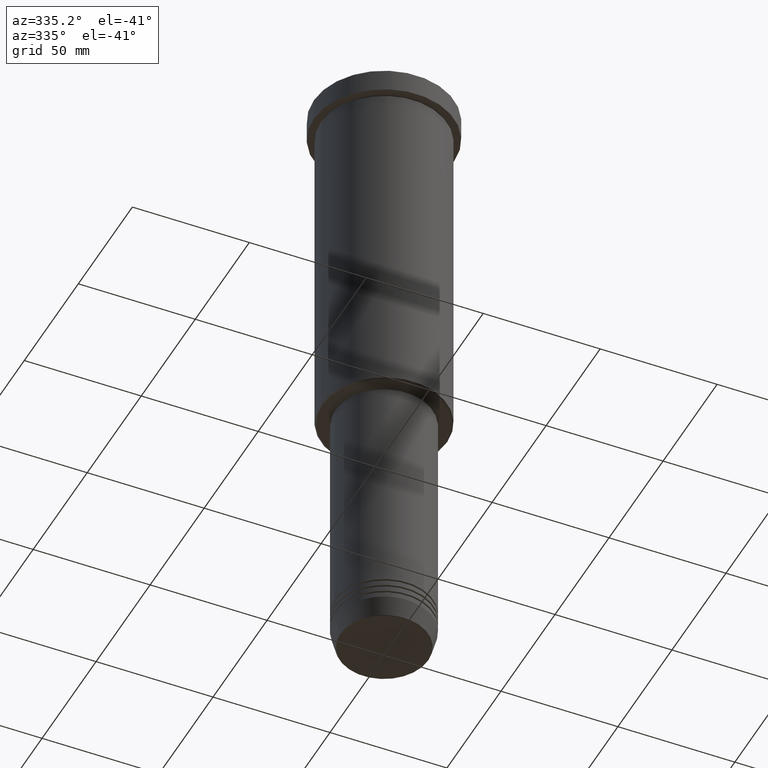
[diagram: clean part render]
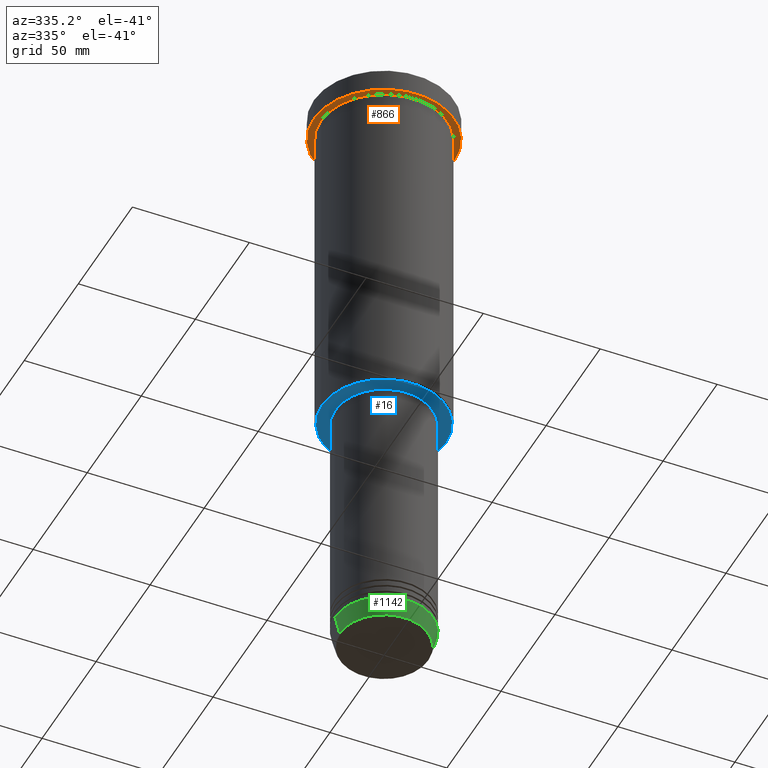
[diagram: same view with three faces highlighted in distinct colors, each labeled with its STEP entity id]
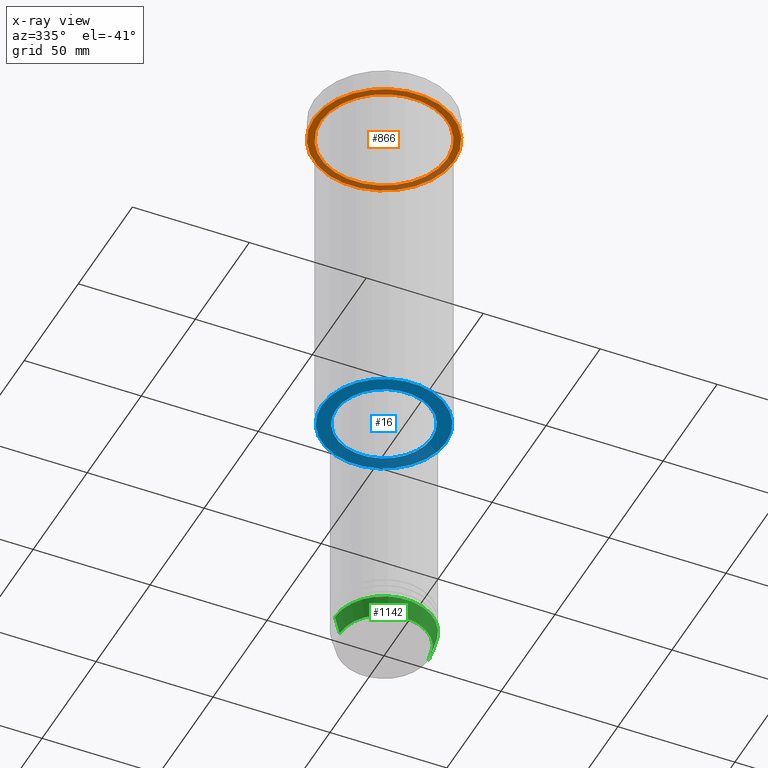
[diagram: x-ray of the same camera — body ghosted, the three highlighted faces saturated]
A machine part, auxiliary view with three faces highlighted in distinct colors.
The next image is the same camera in x-ray (body ghosted, the three faces saturated) — at least one of them is partly hidden behind the body in this view.
Their STEP definitions:

[orange] entity #866 — the highlighted planar face has unit normal (0, 0, -1).
#12 = CARTESIAN_POINT ( 'NONE',  ( 0.000000000000000000, 0.000000000000000000, -9.999999999999992895 ) ) ;
#14 = DIRECTION ( 'NONE',  ( -1.000000000000000000, 0.000000000000000000, -0.000000000000000000 ) ) ;
#37 = CARTESIAN_POINT ( 'NONE',  ( 0.000000000000000000, 30.00000000000000000, -9.999999999999992895 ) ) ;
#47 = CIRCLE ( 'NONE', #234, 27.00000000000000355 ) ;
#101 = DIRECTION ( 'NONE',  ( -1.000000000000000000, 0.000000000000000000, 0.000000000000000000 ) ) ;
#111 = ORIENTED_EDGE ( 'NONE', *, *, #476, .F. ) ;
#114 = ORIENTED_EDGE ( 'NONE', *, *, #998, .F. ) ;
#134 = DIRECTION ( 'NONE',  ( 1.000000000000000000, 0.000000000000000000, 0.000000000000000000 ) ) ;
#201 = AXIS2_PLACEMENT_3D ( 'NONE', #12, #286, #835 ) ;
#204 = VERTEX_POINT ( 'NONE', #1048 ) ;
#224 = CARTESIAN_POINT ( 'NONE',  ( 0.000000000000000000, 0.000000000000000000, -9.999999999999992895 ) ) ;
#234 = AXIS2_PLACEMENT_3D ( 'NONE', #656, #930, #101 ) ;
#252 = VERTEX_POINT ( 'NONE', #1177 ) ;
#286 = DIRECTION ( 'NONE',  ( -0.000000000000000000, -0.000000000000000000, 1.000000000000000000 ) ) ;
#378 = VERTEX_POINT ( 'NONE', #675 ) ;
#466 = CIRCLE ( 'NONE', #201, 30.00000000000000000 ) ;
#476 = EDGE_CURVE ( 'NONE', #378, #252, #859, .T. ) ;
#487 = AXIS2_PLACEMENT_3D ( 'NONE', #517, #777, #1126 ) ;
#517 = CARTESIAN_POINT ( 'NONE',  ( 0.000000000000000000, 0.000000000000000000, -9.999999999999992895 ) ) ;
#593 = VERTEX_POINT ( 'NONE', #1074 ) ;
#656 = CARTESIAN_POINT ( 'NONE',  ( 0.000000000000000000, 0.000000000000000000, -9.999999999999992895 ) ) ;
#675 = CARTESIAN_POINT ( 'NONE',  ( 30.00000000000000000, 0.000000000000000000, -9.999999999999992895 ) ) ;
#680 = ORIENTED_EDGE ( 'NONE', *, *, #741, .T. ) ;
#700 = AXIS2_PLACEMENT_3D ( 'NONE', #224, #1132, #134 ) ;
#702 = EDGE_LOOP ( 'NONE', ( #680, #944 ) ) ;
#741 = EDGE_CURVE ( 'NONE', #593, #204, #807, .T. ) ;
#770 = FACE_BOUND ( 'NONE', #702, .T. ) ;
#777 = DIRECTION ( 'NONE',  ( -0.000000000000000000, -0.000000000000000000, 1.000000000000000000 ) ) ;
#807 = CIRCLE ( 'NONE', #487, 27.00000000000000355 ) ;
#835 = DIRECTION ( 'NONE',  ( 1.000000000000000000, 0.000000000000000000, 0.000000000000000000 ) ) ;
#859 = CIRCLE ( 'NONE', #700, 30.00000000000000000 ) ;
#866 = ADVANCED_FACE ( 'NONE', ( #770, #868 ), #1123, .T. ) ;
#868 = FACE_OUTER_BOUND ( 'NONE', #938, .T. ) ;
#930 = DIRECTION ( 'NONE',  ( -0.000000000000000000, -0.000000000000000000, 1.000000000000000000 ) ) ;
#938 = EDGE_LOOP ( 'NONE', ( #111, #114 ) ) ;
#944 = ORIENTED_EDGE ( 'NONE', *, *, #991, .T. ) ;
#981 = AXIS2_PLACEMENT_3D ( 'NONE', #37, #1012, #14 ) ;
#991 = EDGE_CURVE ( 'NONE', #204, #593, #47, .T. ) ;
#998 = EDGE_CURVE ( 'NONE', #252, #378, #466, .T. ) ;
#1012 = DIRECTION ( 'NONE',  ( 0.000000000000000000, 0.000000000000000000, -1.000000000000000000 ) ) ;
#1048 = CARTESIAN_POINT ( 'NONE',  ( 27.00000000000000355, 3.306546357697854128E-15, -9.999999999999992895 ) ) ;
#1074 = CARTESIAN_POINT ( 'NONE',  ( -27.00000000000000355, 0.000000000000000000, -9.999999999999992895 ) ) ;
#1123 = PLANE ( 'NONE',  #981 ) ;
#1126 = DIRECTION ( 'NONE',  ( -1.000000000000000000, 0.000000000000000000, 0.000000000000000000 ) ) ;
#1132 = DIRECTION ( 'NONE',  ( -0.000000000000000000, -0.000000000000000000, 1.000000000000000000 ) ) ;
#1177 = CARTESIAN_POINT ( 'NONE',  ( -30.00000000000000000, 3.673940397442059178E-15, -9.999999999999992895 ) ) ;

[blue] entity #16 — the highlighted planar face has unit normal (0, 0, -1).
#16 = ADVANCED_FACE ( 'NONE', ( #199, #569 ), #669, .T. ) ;
#55 = ORIENTED_EDGE ( 'NONE', *, *, #1112, .T. ) ;
#92 = AXIS2_PLACEMENT_3D ( 'NONE', #714, #846, #483 ) ;
#141 = VERTEX_POINT ( 'NONE', #338 ) ;
#150 = CARTESIAN_POINT ( 'NONE',  ( -20.50000000000000000, 2.510525938252074481E-15, -156.0000000000000000 ) ) ;
#175 = DIRECTION ( 'NONE',  ( -0.000000000000000000, -0.000000000000000000, 1.000000000000000000 ) ) ;
#199 = FACE_OUTER_BOUND ( 'NONE', #811, .T. ) ;
#200 = CIRCLE ( 'NONE', #876, 26.50000000000002487 ) ;
#211 = CIRCLE ( 'NONE', #92, 26.50000000000002487 ) ;
#216 = EDGE_LOOP ( 'NONE', ( #800, #55 ) ) ;
#242 = CARTESIAN_POINT ( 'NONE',  ( -26.50000000000002487, 3.275930187719171524E-15, -156.0000000000000000 ) ) ;
#256 = CIRCLE ( 'NONE', #354, 20.50000000000000000 ) ;
#291 = DIRECTION ( 'NONE',  ( -1.000000000000000000, 0.000000000000000000, 0.000000000000000000 ) ) ;
#338 = CARTESIAN_POINT ( 'NONE',  ( 20.50000000000000000, 0.000000000000000000, -156.0000000000000000 ) ) ;
#342 = DIRECTION ( 'NONE',  ( -0.000000000000000000, -0.000000000000000000, 1.000000000000000000 ) ) ;
#354 = AXIS2_PLACEMENT_3D ( 'NONE', #1082, #175, #537 ) ;
#391 = VERTEX_POINT ( 'NONE', #848 ) ;
#394 = CIRCLE ( 'NONE', #950, 20.50000000000000000 ) ;
#464 = ORIENTED_EDGE ( 'NONE', *, *, #840, .T. ) ;
#483 = DIRECTION ( 'NONE',  ( -1.000000000000000000, 0.000000000000000000, 0.000000000000000000 ) ) ;
#537 = DIRECTION ( 'NONE',  ( 1.000000000000000000, 0.000000000000000000, 0.000000000000000000 ) ) ;
#563 = VERTEX_POINT ( 'NONE', #150 ) ;
#569 = FACE_BOUND ( 'NONE', #216, .T. ) ;
#575 = DIRECTION ( 'NONE',  ( 0.000000000000000000, 0.000000000000000000, -1.000000000000000000 ) ) ;
#659 = EDGE_CURVE ( 'NONE', #141, #563, #256, .T. ) ;
#669 = PLANE ( 'NONE',  #892 ) ;
#708 = ORIENTED_EDGE ( 'NONE', *, *, #952, .T. ) ;
#714 = CARTESIAN_POINT ( 'NONE',  ( 0.000000000000000000, 0.000000000000000000, -156.0000000000000000 ) ) ;
#760 = DIRECTION ( 'NONE',  ( 0.000000000000000000, 0.000000000000000000, -1.000000000000000000 ) ) ;
#800 = ORIENTED_EDGE ( 'NONE', *, *, #659, .T. ) ;
#804 = VERTEX_POINT ( 'NONE', #242 ) ;
#811 = EDGE_LOOP ( 'NONE', ( #464, #708 ) ) ;
#840 = EDGE_CURVE ( 'NONE', #391, #804, #200, .T. ) ;
#846 = DIRECTION ( 'NONE',  ( 0.000000000000000000, 0.000000000000000000, -1.000000000000000000 ) ) ;
#848 = CARTESIAN_POINT ( 'NONE',  ( 26.50000000000002487, 0.000000000000000000, -156.0000000000000000 ) ) ;
#876 = AXIS2_PLACEMENT_3D ( 'NONE', #1032, #760, #291 ) ;
#892 = AXIS2_PLACEMENT_3D ( 'NONE', #1024, #575, #1124 ) ;
#950 = AXIS2_PLACEMENT_3D ( 'NONE', #1156, #342, #1051 ) ;
#952 = EDGE_CURVE ( 'NONE', #804, #391, #211, .T. ) ;
#1024 = CARTESIAN_POINT ( 'NONE',  ( 0.000000000000000000, 27.00000000000000355, -156.0000000000000000 ) ) ;
#1032 = CARTESIAN_POINT ( 'NONE',  ( 0.000000000000000000, 0.000000000000000000, -156.0000000000000000 ) ) ;
#1051 = DIRECTION ( 'NONE',  ( 1.000000000000000000, 0.000000000000000000, 0.000000000000000000 ) ) ;
#1082 = CARTESIAN_POINT ( 'NONE',  ( 0.000000000000000000, 0.000000000000000000, -156.0000000000000000 ) ) ;
#1112 = EDGE_CURVE ( 'NONE', #563, #141, #394, .T. ) ;
#1124 = DIRECTION ( 'NONE',  ( -1.000000000000000000, 0.000000000000000000, -0.000000000000000000 ) ) ;
#1156 = CARTESIAN_POINT ( 'NONE',  ( 0.000000000000000000, 0.000000000000000000, -156.0000000000000000 ) ) ;

[green] entity #1142 — the highlighted conical surface has half-angle 15 deg.
#19 = DIRECTION ( 'NONE',  ( -0.000000000000000000, -0.000000000000000000, 1.000000000000000000 ) ) ;
#28 = AXIS2_PLACEMENT_3D ( 'NONE', #769, #19, #387 ) ;
#44 = CIRCLE ( 'NONE', #500, 18.95570587970606624 ) ;
#102 = ORIENTED_EDGE ( 'NONE', *, *, #607, .T. ) ;
#118 = VERTEX_POINT ( 'NONE', #787 ) ;
#217 = DIRECTION ( 'NONE',  ( -0.000000000000000000, -0.000000000000000000, 1.000000000000000000 ) ) ;
#223 = ORIENTED_EDGE ( 'NONE', *, *, #924, .T. ) ;
#254 = VECTOR ( 'NONE', #413, 1000.000000000000114 ) ;
#281 = DIRECTION ( 'NONE',  ( 0.2588190451025212391, 0.000000000000000000, 0.9659258262890680902 ) ) ;
#308 = FACE_OUTER_BOUND ( 'NONE', #516, .T. ) ;
#313 = VECTOR ( 'NONE', #281, 1000.000000000000114 ) ;
#326 = VERTEX_POINT ( 'NONE', #560 ) ;
#387 = DIRECTION ( 'NONE',  ( 1.000000000000000000, 0.000000000000000000, 0.000000000000000000 ) ) ;
#413 = DIRECTION ( 'NONE',  ( -0.2588190451025212391, 3.169619151431771721E-17, 0.9659258262890680902 ) ) ;
#426 = DIRECTION ( 'NONE',  ( 1.000000000000000000, 0.000000000000000000, 0.000000000000000000 ) ) ;
#470 = VERTEX_POINT ( 'NONE', #1155 ) ;
#500 = AXIS2_PLACEMENT_3D ( 'NONE', #731, #544, #823 ) ;
#516 = EDGE_LOOP ( 'NONE', ( #642, #102, #223, #772 ) ) ;
#519 = CARTESIAN_POINT ( 'NONE',  ( 0.000000000000000000, 0.000000000000000000, -263.0000000000000000 ) ) ;
#531 = EDGE_CURVE ( 'NONE', #326, #470, #609, .T. ) ;
#544 = DIRECTION ( 'NONE',  ( -0.000000000000000000, -0.000000000000000000, 1.000000000000000000 ) ) ;
#560 = CARTESIAN_POINT ( 'NONE',  ( -18.95570587970606624, 2.446581365662755730E-15, -270.6294095225512706 ) ) ;
#570 = EDGE_CURVE ( 'NONE', #470, #816, #1099, .T. ) ;
#607 = EDGE_CURVE ( 'NONE', #326, #118, #44, .T. ) ;
#609 = LINE ( 'NONE', #885, #254 ) ;
#642 = ORIENTED_EDGE ( 'NONE', *, *, #531, .F. ) ;
#651 = CONICAL_SURFACE ( 'NONE', #28, 21.00000000000000000, 0.2617993877991499629 ) ;
#731 = CARTESIAN_POINT ( 'NONE',  ( 0.000000000000000000, 0.000000000000000000, -270.6294095225512706 ) ) ;
#736 = CARTESIAN_POINT ( 'NONE',  ( 21.00000000000000000, 0.000000000000000000, -263.0000000000000000 ) ) ;
#769 = CARTESIAN_POINT ( 'NONE',  ( 0.000000000000000000, 0.000000000000000000, -263.0000000000000000 ) ) ;
#772 = ORIENTED_EDGE ( 'NONE', *, *, #570, .F. ) ;
#787 = CARTESIAN_POINT ( 'NONE',  ( 18.95570587970606624, 0.000000000000000000, -270.6294095225512706 ) ) ;
#816 = VERTEX_POINT ( 'NONE', #947 ) ;
#823 = DIRECTION ( 'NONE',  ( 1.000000000000000000, 0.000000000000000000, 0.000000000000000000 ) ) ;
#885 = CARTESIAN_POINT ( 'NONE',  ( -21.00000000000000000, 2.571758278209441661E-15, -263.0000000000000000 ) ) ;
#924 = EDGE_CURVE ( 'NONE', #118, #816, #993, .T. ) ;
#947 = CARTESIAN_POINT ( 'NONE',  ( 21.00000000000000000, 0.000000000000000000, -263.0000000000000000 ) ) ;
#979 = AXIS2_PLACEMENT_3D ( 'NONE', #519, #217, #426 ) ;
#993 = LINE ( 'NONE', #736, #313 ) ;
#1099 = CIRCLE ( 'NONE', #979, 21.00000000000000000 ) ;
#1142 = ADVANCED_FACE ( 'NONE', ( #308 ), #651, .T. ) ;
#1155 = CARTESIAN_POINT ( 'NONE',  ( -21.00000000000000000, 2.571758278209441661E-15, -263.0000000000000000 ) ) ;